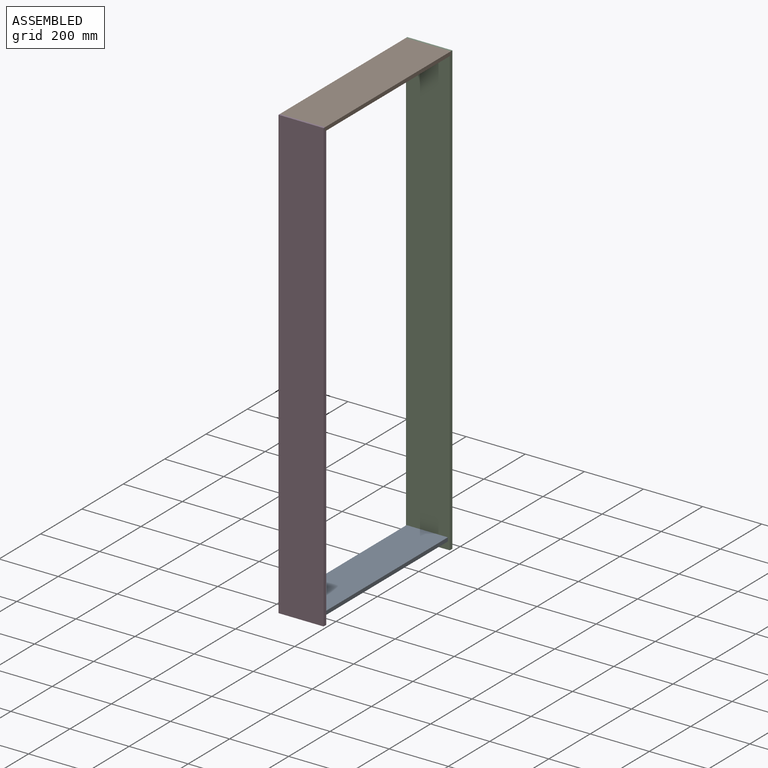
[diagram: assembled view]
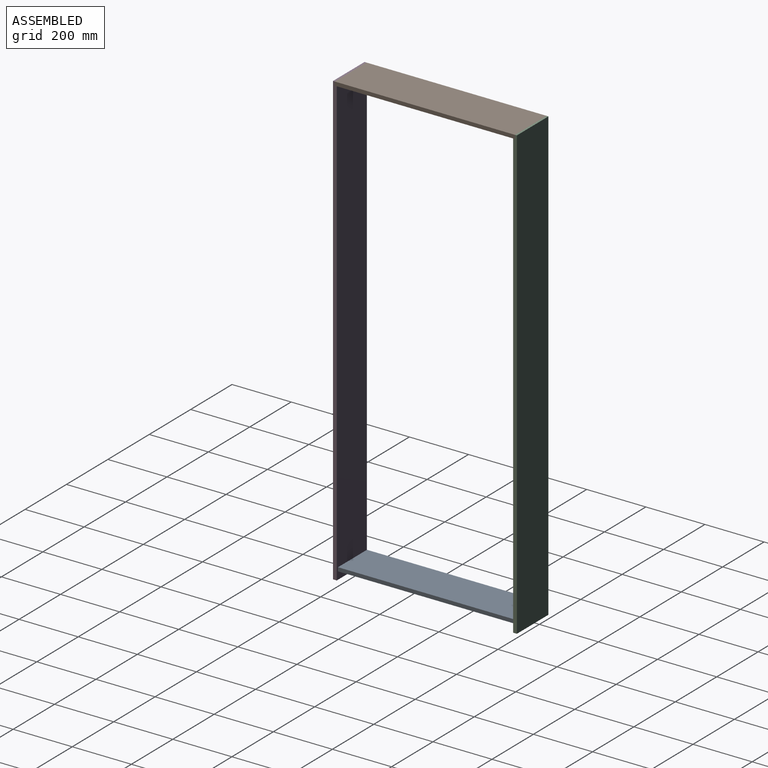
[diagram: assembled view, second angle]
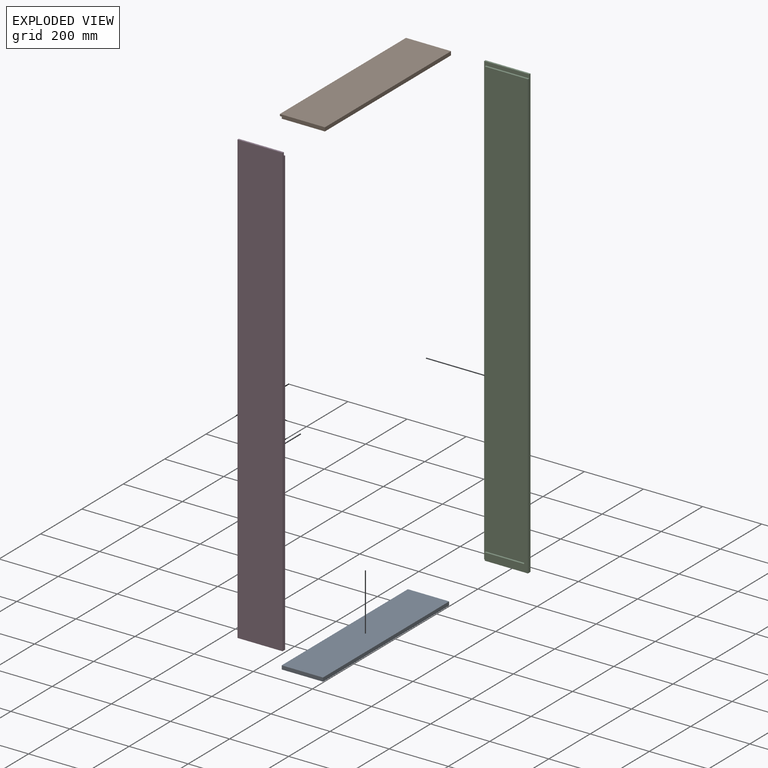
[diagram: exploded view]
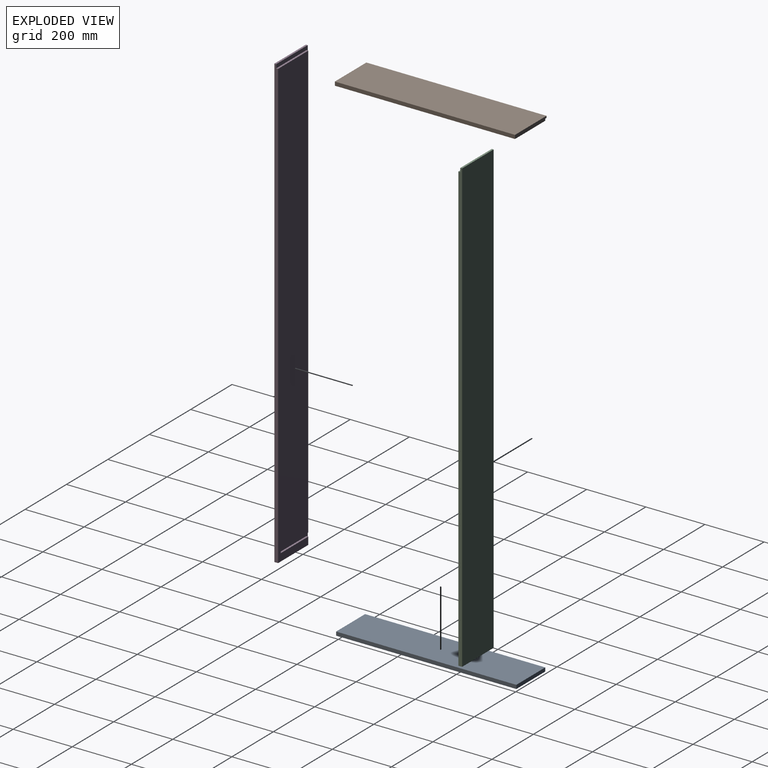
[diagram: exploded view, second angle]
ASSEMBLY  parts=4 mates=9
PART A: 6 faces, bbox 139.7x12.7x609.6 mm
  f0: plane 609.6x12.7mm, normal (-1,0,0), area 7741.9mm2, adj f1,f3,f4,f5
  f1: plane 609.6x139.7mm, normal (0,-1,0), area 85161.1mm2, adj f0,f2,f4,f5
  f2: plane 609.6x12.7mm, normal (1,0,0), area 7741.9mm2, adj f1,f3,f4,f5
  f3: plane 609.6x139.7mm, normal (0,1,0), area 85161.1mm2, adj f0,f2,f4,f5
  f4: plane 139.7x12.7mm, normal (0,0,1), area 1774.2mm2, adj f0,f1,f2,f3
  f5: plane 139.7x12.7mm, normal (0,0,-1), area 1774.2mm2, adj f0,f1,f2,f3
PART B: 8 faces, bbox 152.4x12.7x609.6 mm
  f0: plane 609.6x146.05mm, normal (0,1,0), area 89032.1mm2, adj f1,f5,f6,f7
  f1: plane 609.6x6.35mm, normal (-1,0,0), area 3871mm2, adj f0,f2,f6,f7
  f2: plane 609.6x6.35mm, normal (0,1,0), area 3871mm2, adj f1,f3,f6,f7
  f3: plane 609.6x6.35mm, normal (-1,0,0), area 3871mm2, adj f2,f4,f6,f7
  f4: plane 609.6x152.4mm, normal (0,-1,0), area 92903mm2, adj f3,f5,f6,f7
  f5: plane 609.6x12.7mm, normal (1,0,0), area 7741.9mm2, adj f0,f4,f6,f7
  f6: plane 152.4x12.7mm, normal (0,0,1), area 1895.2mm2, adj f0,f1,f2,f3,f4,f5
  f7: plane 152.4x12.7mm, normal (0,0,-1), area 1895.2mm2, adj f0,f1,f2,f3,f4,f5
PART C: 13 faces, bbox 152.4x12.7x1524 mm
  f0: plane 1524x12.7mm, normal (-1,0,0), area 19274.2mm2, adj f2,f4,f6,f7,f8,f12
  f1: plane 1473.2x6.35mm, normal (1,0,0), area 9354.8mm2, adj f2,f4,f9,f12
  f2: plane 1511.3x146.05mm, normal (0,1,0), area 219031.8mm2, adj f0,f1,f3,f8,f9,f10,f11,f12
  f3: plane 25.4x6.35mm, normal (1,0,0), area 161.3mm2, adj f2,f4,f8,f11
  f4: plane 1524x152.4mm, normal (0,1,0), area 13225.8mm2, adj f0,f1,f3,f5,f7,f8,f9,f10
  f5: plane 1524x6.35mm, normal (1,0,0), area 9677.4mm2, adj f4,f6,f7,f8
  f6: plane 1524x152.4mm, normal (0,-1,0), area 232257.6mm2, adj f0,f5,f7,f8
  f7: plane 152.4x6.35mm, normal (0,0,1), area 967.7mm2, adj f0,f4,f5,f6
  f8: plane 152.4x12.7mm, normal (0,0,-1), area 1895.2mm2, adj f0,f2,f3,f4,f5,f6
  f9: plane 133.35x6.35mm, normal (0,0,-1), area 846.8mm2, adj f1,f2,f4,f10
  f10: plane 12.7x6.35mm, normal (1,0,0), area 80.6mm2, adj f2,f4,f9,f11
  f11: plane 133.35x6.35mm, normal (0,0,1), area 846.8mm2, adj f2,f3,f4,f10
  f12: plane 146.05x6.35mm, normal (0,0,1), area 927.4mm2, adj f0,f1,f2,f4
PART D: 13 faces, bbox 152.4x12.7x1524 mm
  f0: plane 1524x12.7mm, normal (1,0,0), area 19274.2mm2, adj f2,f4,f6,f7,f8,f12
  f1: plane 1473.2x6.35mm, normal (-1,0,0), area 9354.8mm2, adj f2,f4,f9,f12
  f2: plane 1511.3x146.05mm, normal (0,1,0), area 219031.8mm2, adj f0,f1,f3,f8,f9,f10,f11,f12
  f3: plane 25.4x6.35mm, normal (-1,0,0), area 161.3mm2, adj f2,f4,f8,f11
  f4: plane 1524x152.4mm, normal (0,1,0), area 13225.8mm2, adj f0,f1,f3,f5,f7,f8,f9,f10
  f5: plane 1524x6.35mm, normal (-1,0,0), area 9677.4mm2, adj f4,f6,f7,f8
  f6: plane 1524x152.4mm, normal (0,-1,0), area 232257.6mm2, adj f0,f5,f7,f8
  f7: plane 152.4x6.35mm, normal (0,0,1), area 967.7mm2, adj f0,f4,f5,f6
  f8: plane 152.4x12.7mm, normal (0,0,-1), area 1895.2mm2, adj f0,f2,f3,f4,f5,f6
  f9: plane 133.35x6.35mm, normal (0,0,-1), area 846.8mm2, adj f1,f2,f4,f10
  f10: plane 12.7x6.35mm, normal (-1,0,0), area 80.6mm2, adj f2,f4,f9,f11
  f11: plane 133.35x6.35mm, normal (0,0,1), area 846.8mm2, adj f2,f3,f4,f10
  f12: plane 146.05x6.35mm, normal (0,0,1), area 927.4mm2, adj f0,f1,f2,f4
PLACE A rot(axis=(-1,0,0),90deg) t=(343.92,-187.95,-561.45)mm
PLACE B rot(axis=(-1,0,0),90deg) t=(29.24,-187.95,761.7)mm
PLACE C rot(axis=(0,0,-1),180deg) t=(-23.18,428,-711.44)mm
PLACE D t=(281.62,-194.3,-711.44)mm
MATE planar B.f4 <-> D.f7  axis (0,0,1) through (357.82,116.85,812.56)mm
MATE planar A.f3 <-> C.f11  axis (0,0,-1) through (357.82,116.85,-686.04)mm
MATE planar B.f5 <-> C.f0  axis (1,0,0) through (434.02,116.85,806.21)mm
MATE planar C.f7 <-> B.f4  axis (0,0,1) through (357.82,424.83,812.56)mm
MATE planar B.f6 <-> C.f4  axis (0,1,0) through (359.37,421.65,806.28)mm
MATE planar A.f4 <-> C.f4  axis (0,1,0) through (357.82,421.65,-679.69)mm
MATE planar B.f7 <-> D.f4  axis (0,-1,0) through (281.62,-187.95,812.56)mm
MATE planar D.f0 <-> B.f5  axis (1,0,0) through (434.02,-187.96,47.4)mm
MATE planar A.f0 <-> C.f1  axis (-1,0,0) through (287.97,116.85,-679.69)mm
